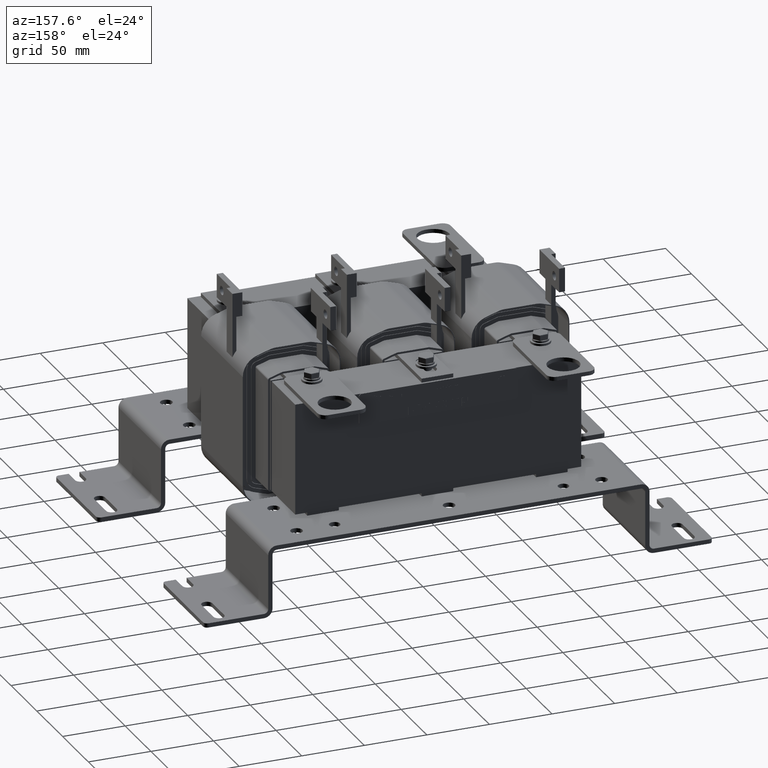
[diagram: clean part render]
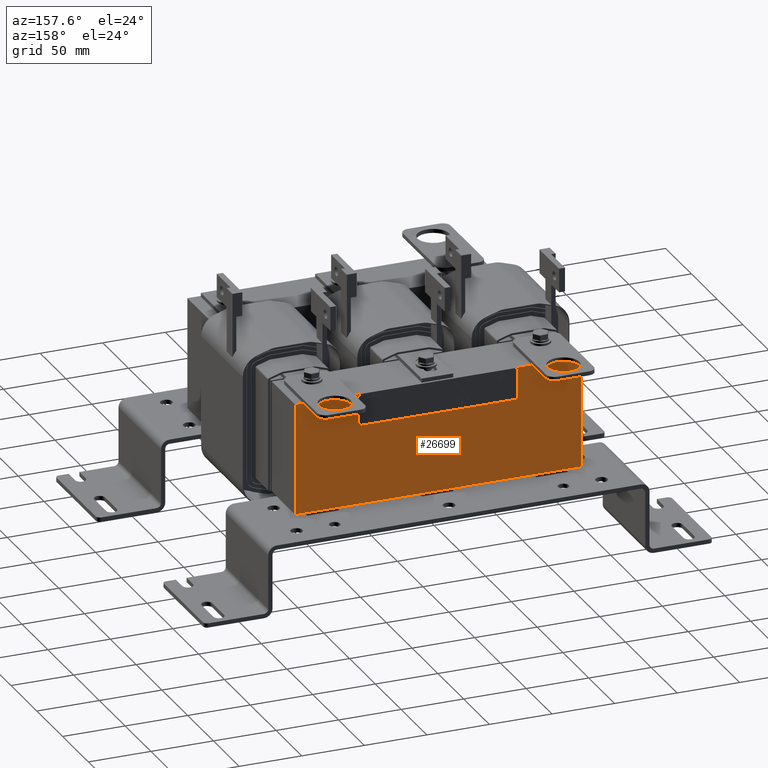
[diagram: same view with one face highlighted and labeled with its STEP entity id]
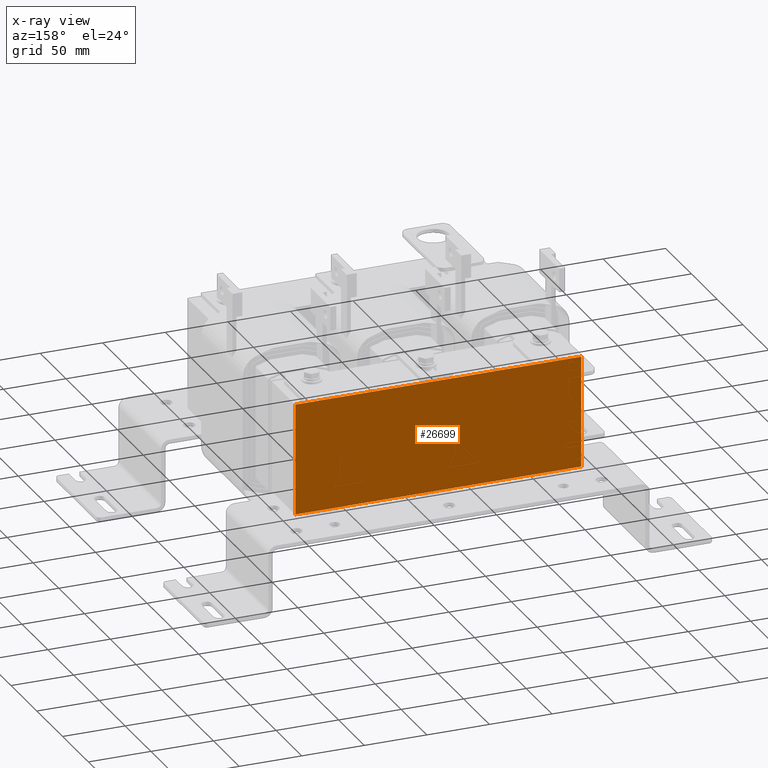
[diagram: x-ray of the same camera — body ghosted, the highlighted face saturated]
A machine part, auxiliary view. The second image highlights one B-rep face of the part: STEP entity #26699.
The next image is the same camera in x-ray: the body ghosted, the highlighted face saturated — about 0% of this face is hidden behind the body in this view.
In plain terms, the highlighted planar face has unit normal (-0, 1, 0).
Its self-contained STEP definition (entity closure, byte-faithful):
#1023=PLANE('',#28585);
#1833=FACE_OUTER_BOUND('',#3322,.T.);
#3322=EDGE_LOOP('',(#18103,#18104,#18105,#18106));
#4943=LINE('',#38321,#7662);
#4945=LINE('',#38326,#7664);
#4947=LINE('',#38330,#7666);
#4948=LINE('',#38331,#7667);
#7662=VECTOR('',#30936,0.393700787401575);
#7664=VECTOR('',#30940,0.393700787401575);
#7666=VECTOR('',#30944,0.393700787401575);
#7667=VECTOR('',#30945,0.393700787401575);
#11336=VERTEX_POINT('',#38315);
#11338=VERTEX_POINT('',#38319);
#11340=VERTEX_POINT('',#38324);
#11341=VERTEX_POINT('',#38329);
#14031=EDGE_CURVE('',#11336,#11338,#4943,.T.);
#14033=EDGE_CURVE('',#11340,#11338,#4945,.T.);
#14035=EDGE_CURVE('',#11340,#11341,#4947,.T.);
#14036=EDGE_CURVE('',#11341,#11336,#4948,.T.);
#18103=ORIENTED_EDGE('',*,*,#14035,.T.);
#18104=ORIENTED_EDGE('',*,*,#14036,.T.);
#18105=ORIENTED_EDGE('',*,*,#14031,.T.);
#18106=ORIENTED_EDGE('',*,*,#14033,.F.);
#26699=ADVANCED_FACE('',(#1833),#1023,.T.);
#28585=AXIS2_PLACEMENT_3D('',#38328,#30942,#30943);
#30936=DIRECTION('',(-1.,-2.52544170080963E-16,0.));
#30940=DIRECTION('',(0.,0.,-1.));
#30942=DIRECTION('center_axis',(-2.52544170080963E-16,1.,0.));
#30943=DIRECTION('ref_axis',(0.,0.,1.));
#30944=DIRECTION('',(1.,2.52544170080963E-16,0.));
#30945=DIRECTION('',(0.,0.,-1.));
#38315=CARTESIAN_POINT('',(7.71526407111042,0.841355113219955,-1.75));
#38319=CARTESIAN_POINT('',(-1.28473592888958,0.841355113219953,-1.75));
#38321=CARTESIAN_POINT('',(-1.28473592888958,0.841355113219953,-1.75));
#38324=CARTESIAN_POINT('',(-1.28473592888958,0.841355113219953,1.75));
#38326=CARTESIAN_POINT('',(-1.28473592888958,0.841355113219953,0.));
#38328=CARTESIAN_POINT('Origin',(-1.28473592888958,0.841355113219953,0.));
#38329=CARTESIAN_POINT('',(7.71526407111042,0.841355113219955,1.75));
#38330=CARTESIAN_POINT('',(-1.28473592888958,0.841355113219953,1.75));
#38331=CARTESIAN_POINT('',(7.71526407111042,0.841355113219955,0.));